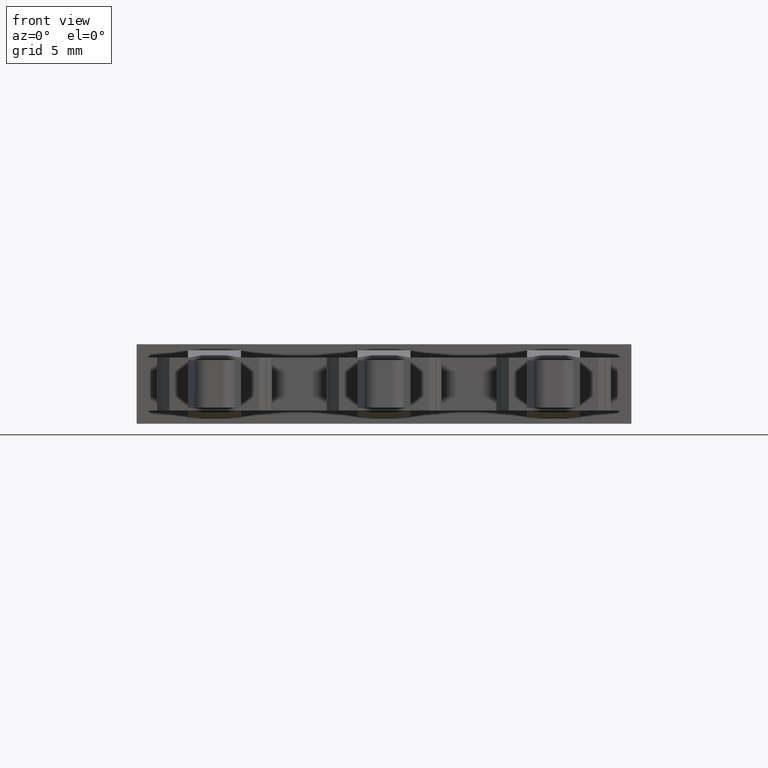
[diagram: clean part render]
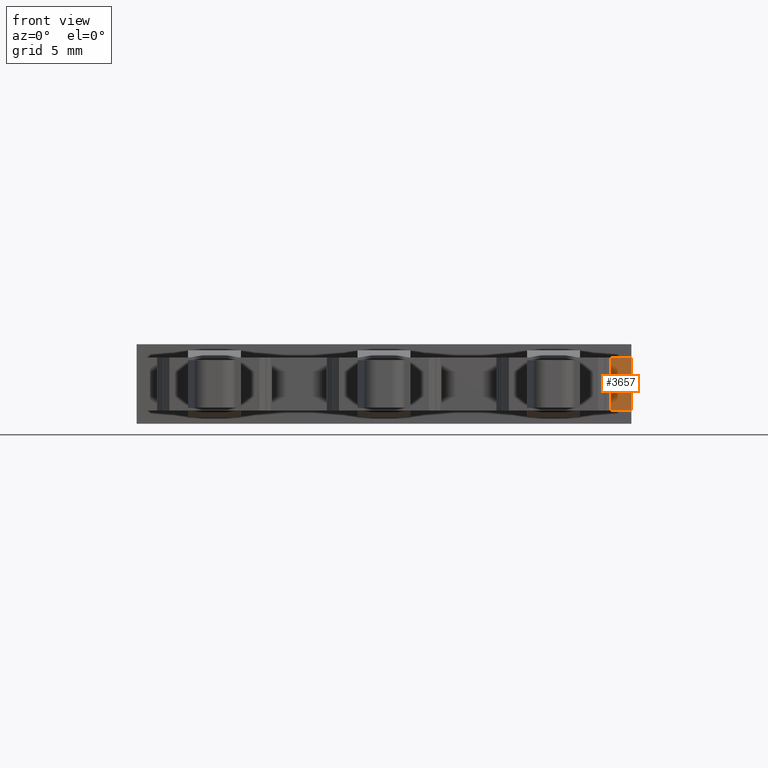
[diagram: same view with one face highlighted and labeled with its STEP entity id]
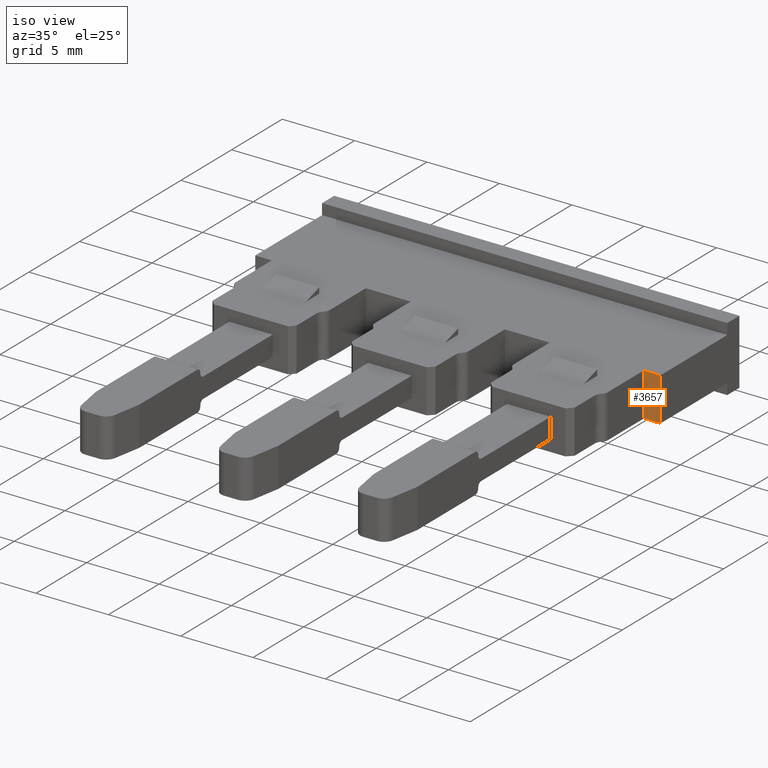
[diagram: same view with one face highlighted and labeled with its STEP entity id]
A machine part, front view. The second image highlights one B-rep face of the part: STEP entity #3657.
A second angle (iso view) of the same face is appended — the face is thin or edge-on in the first view.
In plain terms, the highlighted planar face has unit normal (0, 1, 0).
Its self-contained STEP definition (entity closure, byte-faithful):
#239 = CARTESIAN_POINT ( 'NONE',  ( 1156.444467917465300, 666.4912584401425900, 0.0000000000000000000 ) ) ;
#265 = CARTESIAN_POINT ( 'NONE',  ( 1157.594465032600300, 666.4912584401425900, 0.0000000000000000000 ) ) ;
#339 = CARTESIAN_POINT ( 'NONE',  ( 1157.594465032600300, 666.4912584401425900, 3.000000000000000000 ) ) ;
#358 = CARTESIAN_POINT ( 'NONE',  ( 1156.444467917465300, 666.4912584401425900, 3.000000000000000000 ) ) ;
#444 = FACE_OUTER_BOUND ( 'NONE', #2685, .T. ) ;
#449 = CARTESIAN_POINT ( 'NONE',  ( 1156.444467917465300, 666.4912584401425900, 3.000000000000000000 ) ) ;
#456 = DIRECTION ( 'NONE',  ( 0.0000000000000000000, -0.0000000000000000000, 1.000000000000000000 ) ) ;
#461 = PLANE ( 'NONE',  #3375 ) ;
#493 = DIRECTION ( 'NONE',  ( 0.0000000000000000000, 1.000000000000000000, 0.0000000000000000000 ) ) ;
#764 = CARTESIAN_POINT ( 'NONE',  ( 1156.444467917465300, 666.4912584401425900, 0.0000000000000000000 ) ) ;
#768 = LINE ( 'NONE', #764, #3386 ) ;
#809 = DIRECTION ( 'NONE',  ( -1.000000000000000000, 0.0000000000000000000, 0.0000000000000000000 ) ) ;
#1005 = LINE ( 'NONE', #1018, #3448 ) ;
#1018 = CARTESIAN_POINT ( 'NONE',  ( 1146.994467408302400, 666.4912584401425900, 3.000000000000000000 ) ) ;
#1026 = DIRECTION ( 'NONE',  ( 1.000000000000000000, 0.0000000000000000000, 0.0000000000000000000 ) ) ;
#1667 = DIRECTION ( 'NONE',  ( 0.0000000000000000000, 0.0000000000000000000, -1.000000000000000000 ) ) ;
#1682 = CARTESIAN_POINT ( 'NONE',  ( 1156.444467917465300, 666.4912584401425900, 3.000000000000000000 ) ) ;
#1692 = LINE ( 'NONE', #1682, #3287 ) ;
#1719 = LINE ( 'NONE', #1734, #3255 ) ;
#1734 = CARTESIAN_POINT ( 'NONE',  ( 1157.594465032600300, 666.4912584401425900, 3.000000000000000000 ) ) ;
#1757 = DIRECTION ( 'NONE',  ( 0.0000000000000000000, 0.0000000000000000000, 1.000000000000000000 ) ) ;
#2267 = ORIENTED_EDGE ( 'NONE', *, *, #4055, .T. ) ;
#2271 = ORIENTED_EDGE ( 'NONE', *, *, #3715, .F. ) ;
#2287 = ORIENTED_EDGE ( 'NONE', *, *, #4069, .T. ) ;
#2292 = ORIENTED_EDGE ( 'NONE', *, *, #3793, .F. ) ;
#2353 = VERTEX_POINT ( 'NONE', #239 ) ;
#2415 = VERTEX_POINT ( 'NONE', #265 ) ;
#2479 = VERTEX_POINT ( 'NONE', #358 ) ;
#2481 = VERTEX_POINT ( 'NONE', #339 ) ;
#2685 = EDGE_LOOP ( 'NONE', ( #2287, #2292, #2267, #2271 ) ) ;
#3255 = VECTOR ( 'NONE', #1757, 1000.000000000000000 ) ;
#3287 = VECTOR ( 'NONE', #1667, 1000.000000000000000 ) ;
#3375 = AXIS2_PLACEMENT_3D ( 'NONE', #449, #493, #456 ) ;
#3386 = VECTOR ( 'NONE', #809, 1000.000000000000000 ) ;
#3448 = VECTOR ( 'NONE', #1026, 1000.000000000000000 ) ;
#3657 = ADVANCED_FACE ( 'NONE', ( #444 ), #461, .F. ) ;
#3715 = EDGE_CURVE ( 'NONE', #2415, #2353, #768, .T. ) ;
#3793 = EDGE_CURVE ( 'NONE', #2479, #2481, #1005, .T. ) ;
#4055 = EDGE_CURVE ( 'NONE', #2479, #2353, #1692, .T. ) ;
#4069 = EDGE_CURVE ( 'NONE', #2415, #2481, #1719, .T. ) ;